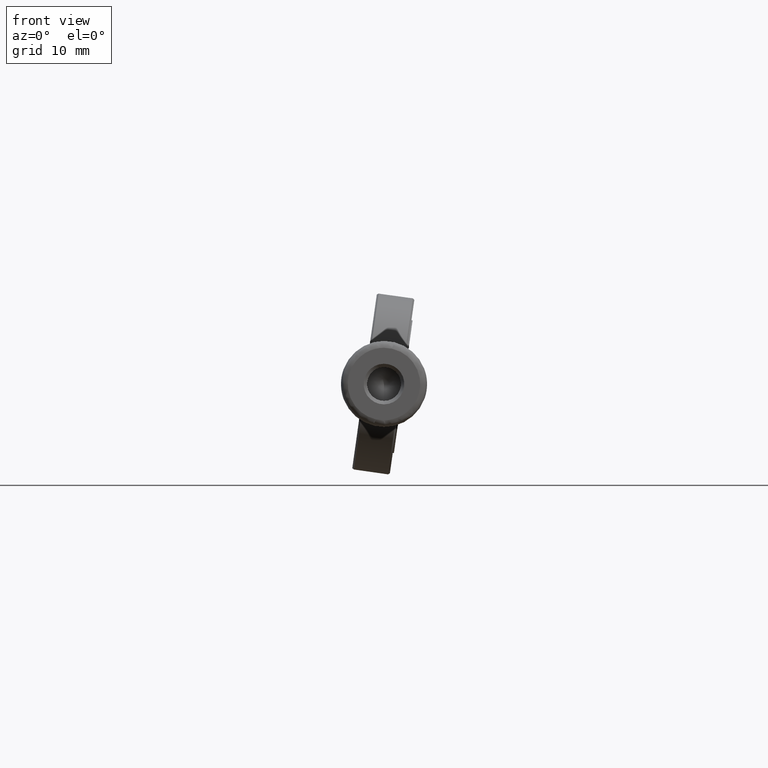
[diagram: clean part render]
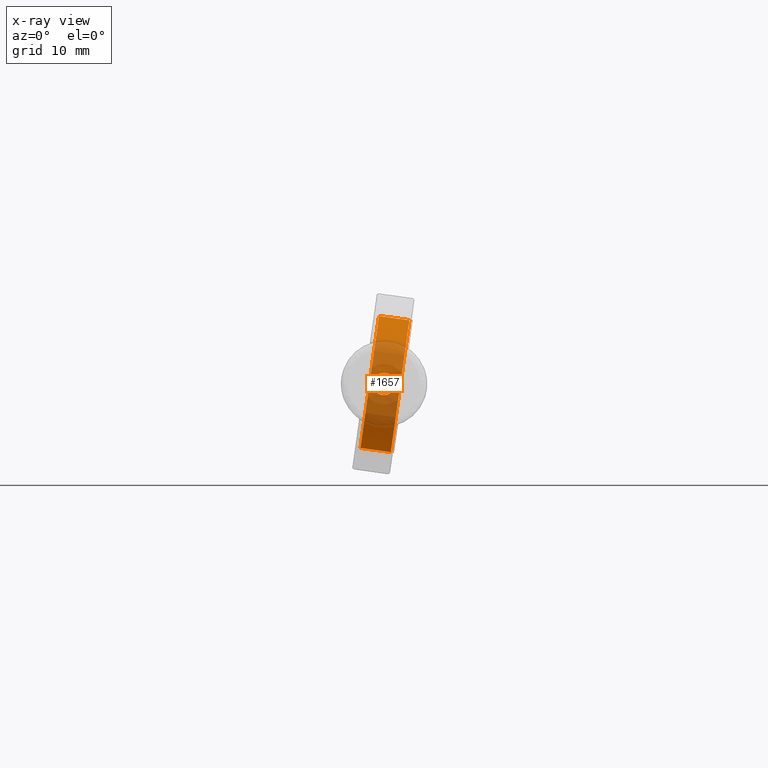
[diagram: x-ray — body ghosted, one internal face saturated and labeled with its STEP entity id]
A machine part, front view, then the same camera in x-ray: the body is ghosted and one INTERNAL B-rep face — a face not visible from any outside direction — is saturated and labeled: STEP entity #1657.
In plain terms, the highlighted cylindrical surface (partial cylindrical patch) has radius 9.9 mm, axis along (0.9902, 0, -0.1396).
Its self-contained STEP definition (entity closure, byte-faithful):
#1 = CARTESIAN_POINT ( 'NONE',  ( -51.27976293255940021, 40.03334560301056655, 18.68058945185205388 ) ) ;
#22 = CARTESIAN_POINT ( 'NONE',  ( -51.40333072120616009, 40.02760731170136665, 18.04129277581221302 ) ) ;
#42 = VERTEX_POINT ( 'NONE', #1213 ) ;
#44 = CARTESIAN_POINT ( 'NONE',  ( -48.43852893836732676, 40.05875689611266210, 17.00208125829816908 ) ) ;
#46 = CARTESIAN_POINT ( 'NONE',  ( -51.85900066737271175, 49.92581623896437293, 18.32375053031928047 ) ) ;
#84 = AXIS2_PLACEMENT_3D ( 'NONE', #46, #1559, #1837 ) ;
#110 = DIRECTION ( 'NONE',  ( 0.9902015919893349949, 0.000000000000000000, -0.1396452907254177311 ) ) ;
#154 = CARTESIAN_POINT ( 'NONE',  ( -48.20604034470954957, 40.05869693852149283, 18.64753704534480860 ) ) ;
#163 = CARTESIAN_POINT ( 'NONE',  ( -49.44117751943279870, 40.15027801999130475, 16.40183857138276835 ) ) ;
#173 = CARTESIAN_POINT ( 'NONE',  ( -50.68232467357280768, 40.13733678994046983, 16.66076612521413836 ) ) ;
#184 = CARTESIAN_POINT ( 'NONE',  ( -48.81741687128309337, 40.13733670706356094, 19.39184530364107673 ) ) ;
#192 = CARTESIAN_POINT ( 'NONE',  ( -50.26787745086483739, 40.13736834198690673, 19.59661051610056504 ) ) ;
#203 = LINE ( 'NONE', #1401, #874 ) ;
#208 = FACE_OUTER_BOUND ( 'NONE', #1603, .T. ) ;
#301 = CARTESIAN_POINT ( 'NONE',  ( -48.09641183754542482, 40.02760730927245447, 18.01131920207081549 ) ) ;
#320 = CARTESIAN_POINT ( 'NONE',  ( -51.37469506718828427, 40.03954543089545126, 17.71945408448848625 ) ) ;
#341 = VERTEX_POINT ( 'NONE', #1234 ) ;
#343 = EDGE_CURVE ( 'NONE', #1632, #42, #937, .T. ) ;
#457 = CARTESIAN_POINT ( 'NONE',  ( -48.10108050350296338, 40.02580248524214568, 17.90136612180744535 ) ) ;
#465 = CIRCLE ( 'NONE', #718, 9.900000000000002132 ) ;
#467 = CARTESIAN_POINT ( 'NONE',  ( -51.39866205935844334, 40.02580248523303652, 18.15124592989183938 ) ) ;
#472 = B_SPLINE_CURVE_WITH_KNOTS ( 'NONE', 3,
 ( #1251, #1102, #478, #1854, #163, #754, #616, #764, #635, #1242, #44, #1864, #785, #457, #301, #1369, #912, #154, #626, #1218, #1378, #487, #184, #1209, #949, #501, #1711, #1232, #1699, #192, #1390, #792, #1506, #1360, #1835, #1, #1062, #467, #22, #1516, #320, #1075, #1678, #922, #1689, #1526, #173, #773, #1846, #1085 ),
 .UNSPECIFIED., .T., .F.,
 ( 4, 2, 2, 2, 2, 2, 2, 2, 2, 2, 2, 2, 2, 2, 2, 2, 2, 2, 2, 2, 2, 2, 2, 2, 4 ),
 ( 0.000000000000000000, 0.0003228983602868928872, 0.0006457967205737857744, 0.0009686950808606787158, 0.001291593441147571549, 0.001937390161721359166, 0.002583186882295146567, 0.002906085242582046990, 0.003228983602868947412, 0.003874780323442764303, 0.004197678683729668195, 0.004520577044016572954, 0.005166373764590385075, 0.005489272124877301109, 0.005812170485164217144, 0.006135068845451132312, 0.006457967205738048347, 0.007103763926311863937, 0.007749560646885679527, 0.008072459007172580817, 0.008395357367459482106, 0.009041154088033282951, 0.009364052448320194649, 0.009686950808607106347, 0.01033274752918094015 ),
 .UNSPECIFIED. ) ;
#478 = CARTESIAN_POINT ( 'NONE',  ( -49.76437693488349367, 40.16245325709243019, 16.37286346276456328 ) ) ;
#487 = CARTESIAN_POINT ( 'NONE',  ( -48.72908255417329570, 40.12953717025569489, 19.32708282149571133 ) ) ;
#501 = CARTESIAN_POINT ( 'NONE',  ( -49.62758258744442230, 40.16428461620071033, 19.67538750889652732 ) ) ;
#616 = CARTESIAN_POINT ( 'NONE',  ( -49.13102958133730169, 40.12972978663918155, 16.49296174309720797 ) ) ;
#626 = CARTESIAN_POINT ( 'NONE',  ( -48.30050432593900922, 40.07649397012808379, 18.84425329910592239 ) ) ;
#635 = CARTESIAN_POINT ( 'NONE',  ( -48.84329415698007892, 40.10381795503204927, 16.64349933625401334 ) ) ;
#640 = VERTEX_POINT ( 'NONE', #1248 ) ;
#707 = CARTESIAN_POINT ( 'NONE',  ( -46.24091927446775685, 55.60422295883972055, 25.72130138086230389 ) ) ;
#718 = AXIS2_PLACEMENT_3D ( 'NONE', #1781, #1773, #1004 ) ;
#720 = ORIENTED_EDGE ( 'NONE', *, *, #1572, .T. ) ;
#754 = CARTESIAN_POINT ( 'NONE',  ( -49.23186395822646944, 40.13736826016853598, 16.45600198894079469 ) ) ;
#762 = ORIENTED_EDGE ( 'NONE', *, *, #1776, .F. ) ;
#764 = CARTESIAN_POINT ( 'NONE',  ( -48.93687337334408483, 40.11297886312195971, 16.58646431607813554 ) ) ;
#773 = CARTESIAN_POINT ( 'NONE',  ( -50.40333503932907888, 40.15669921925815800, 16.49589444074734956 ) ) ;
#785 = CARTESIAN_POINT ( 'NONE',  ( -48.14648868514987612, 40.02584399100943102, 17.58116757555882259 ) ) ;
#792 = CARTESIAN_POINT ( 'NONE',  ( -50.56286830748397421, 40.11297894538444098, 19.46614830335438739 ) ) ;
#812 = DIRECTION ( 'NONE',  ( 0.9902015919893352169, 0.000000000000000000, -0.1396452907254177589 ) ) ;
#874 = VECTOR ( 'NONE', #959, 1000.000000000000227 ) ;
#912 = CARTESIAN_POINT ( 'NONE',  ( -48.12504742458432361, 40.03954541335065898, 18.33315768783953459 ) ) ;
#922 = CARTESIAN_POINT ( 'NONE',  ( -51.00338734311487343, 40.10384198257959554, 16.94788219054251854 ) ) ;
#937 = CIRCLE ( 'NONE', #84, 9.900000000000002132 ) ;
#949 = CARTESIAN_POINT ( 'NONE',  ( -49.30319932666868255, 40.16428455814810405, 19.62964032108361678 ) ) ;
#959 = DIRECTION ( 'NONE',  ( 0.9902015919893349949, 0.000000000000000000, -0.1396452907254177311 ) ) ;
#977 = VERTEX_POINT ( 'NONE', #707 ) ;
#994 = CARTESIAN_POINT ( 'NONE',  ( -51.85900066737271175, 49.92581623896437293, 18.32375053031928047 ) ) ;
#1004 = DIRECTION ( 'NONE',  ( -0.1396452907254174536, 0.000000000000000000, -0.9902015919893349949 ) ) ;
#1062 = CARTESIAN_POINT ( 'NONE',  ( -51.35325384773961588, 40.02584399102771329, 18.47144468748913582 ) ) ;
#1075 = CARTESIAN_POINT ( 'NONE',  ( -51.29370200959943560, 40.05869697927818152, 17.40507453139954208 ) ) ;
#1085 = CARTESIAN_POINT ( 'NONE',  ( -49.98028600613238837, 40.16428459685000973, 16.39247343429174464 ) ) ;
#1102 = CARTESIAN_POINT ( 'NONE',  ( -49.87215832759929413, 40.16428459685001684, 16.37722449788690326 ) ) ;
#1140 = FACE_BOUND ( 'NONE', #1493, .T. ) ;
#1209 = CARTESIAN_POINT ( 'NONE',  ( -49.09640621490253665, 40.15669915496711440, 19.55671710914879213 ) ) ;
#1213 = CARTESIAN_POINT ( 'NONE',  ( -52.99146884856597239, 55.60422295883972055, 10.29360651279011662 ) ) ;
#1218 = CARTESIAN_POINT ( 'NONE',  ( -48.49635460975271428, 40.10384190504128554, 19.10472922787715078 ) ) ;
#1232 = CARTESIAN_POINT ( 'NONE',  ( -49.95026962235203882, 40.15549157479822640, 19.66762362868713865 ) ) ;
#1234 = CARTESIAN_POINT ( 'NONE',  ( -48.50585563685428525, 55.60422295883971344, 9.661013345803974417 ) ) ;
#1242 = CARTESIAN_POINT ( 'NONE',  ( -48.58586484232139213, 40.07677748460766765, 16.83730014508705963 ) ) ;
#1248 = CARTESIAN_POINT ( 'NONE',  ( -49.98028600613237415, 40.16428459685000973, 16.39247343429174109 ) ) ;
#1251 = CARTESIAN_POINT ( 'NONE',  ( -49.98028600613238837, 40.16428459685000973, 16.39247343429174464 ) ) ;
#1262 = EDGE_CURVE ( 'NONE', #1632, #977, #203, .T. ) ;
#1320 = ORIENTED_EDGE ( 'NONE', *, *, #1262, .T. ) ;
#1360 = CARTESIAN_POINT ( 'NONE',  ( -50.91387721526692189, 40.07677754349823829, 19.21531248856330976 ) ) ;
#1369 = CARTESIAN_POINT ( 'NONE',  ( -48.10855302938039557, 40.03449657992376132, 18.22687309196749439 ) ) ;
#1378 = CARTESIAN_POINT ( 'NONE',  ( -48.56910510386189372, 40.11282580707441525, 19.18381245054092332 ) ) ;
#1390 = CARTESIAN_POINT ( 'NONE',  ( -50.36871192126820773, 40.12972987022474314, 19.55965080751941798 ) ) ;
#1401 = CARTESIAN_POINT ( 'NONE',  ( -75.81416831308671078, 55.60422295883972055, 29.89193187984620081 ) ) ;
#1465 = CARTESIAN_POINT ( 'NONE',  ( -52.99146884856597239, 55.60422295883971344, 10.29360651279011662 ) ) ;
#1492 = LINE ( 'NONE', #1465, #1960 ) ;
#1493 = EDGE_LOOP ( 'NONE', ( #720 ) ) ;
#1506 = CARTESIAN_POINT ( 'NONE',  ( -50.65644762402601486, 40.10381803267604539, 19.40911329765873816 ) ) ;
#1516 = CARTESIAN_POINT ( 'NONE',  ( -51.39118949356818433, 40.03449659113672254, 17.82573874761484234 ) ) ;
#1526 = CARTESIAN_POINT ( 'NONE',  ( -50.77065910569203311, 40.12953725435917818, 16.72552859378096812 ) ) ;
#1545 = AXIS2_PLACEMENT_3D ( 'NONE', #994, #812, #1595 ) ;
#1557 = CARTESIAN_POINT ( 'NONE',  ( -50.72653248617945110, 55.60422295883972055, 26.35389454784845142 ) ) ;
#1559 = DIRECTION ( 'NONE',  ( 0.9902015919893352169, 0.000000000000000000, -0.1396452907254177589 ) ) ;
#1572 = EDGE_CURVE ( 'NONE', #640, #640, #472, .T. ) ;
#1595 = DIRECTION ( 'NONE',  ( -0.1396452907254174536, 0.000000000000000000, -0.9902015919893349949 ) ) ;
#1603 = EDGE_LOOP ( 'NONE', ( #1635, #1320, #1679, #762 ) ) ;
#1632 = VERTEX_POINT ( 'NONE', #1557 ) ;
#1635 = ORIENTED_EDGE ( 'NONE', *, *, #343, .F. ) ;
#1657 = ADVANCED_FACE ( 'NONE', ( #208, #1140 ), #1752, .F. ) ;
#1678 = CARTESIAN_POINT ( 'NONE',  ( -51.19923787567529416, 40.07649403166500690, 17.20835816735989710 ) ) ;
#1679 = ORIENTED_EDGE ( 'NONE', *, *, #1825, .T. ) ;
#1689 = CARTESIAN_POINT ( 'NONE',  ( -50.93063675810594759, 40.11282588842711760, 16.86879895998515977 ) ) ;
#1699 = CARTESIAN_POINT ( 'NONE',  ( -50.05856369036347786, 40.15027809155360927, 19.65077381138688750 ) ) ;
#1711 = CARTESIAN_POINT ( 'NONE',  ( -49.73536405457960541, 40.16245329239198725, 19.67974865013346175 ) ) ;
#1752 = CYLINDRICAL_SURFACE ( 'NONE', #1545, 9.900000000000002132 ) ;
#1773 = DIRECTION ( 'NONE',  ( 0.9902015919893352169, 0.000000000000000000, -0.1396452907254177589 ) ) ;
#1776 = EDGE_CURVE ( 'NONE', #42, #341, #1492, .T. ) ;
#1781 = CARTESIAN_POINT ( 'NONE',  ( -47.37338745566102460, 49.92581623896437293, 17.69115736333314004 ) ) ;
#1825 = EDGE_CURVE ( 'NONE', #977, #341, #465, .T. ) ;
#1835 = CARTESIAN_POINT ( 'NONE',  ( -51.06121327858250680, 40.05875693618907718, 19.05053132356792744 ) ) ;
#1837 = DIRECTION ( 'NONE',  ( -0.1396452907254174536, 0.000000000000000000, -0.9902015919893349949 ) ) ;
#1846 = CARTESIAN_POINT ( 'NONE',  ( -50.19654136319858395, 40.16428459685000973, 16.42297130710143094 ) ) ;
#1854 = CARTESIAN_POINT ( 'NONE',  ( -49.54947151508767433, 40.15549151360015401, 16.38498867077952781 ) ) ;
#1864 = CARTESIAN_POINT ( 'NONE',  ( -48.21997952346789162, 40.03334559276834881, 17.37202294312498907 ) ) ;
#1960 = VECTOR ( 'NONE', #110, 1000.000000000000227 ) ;